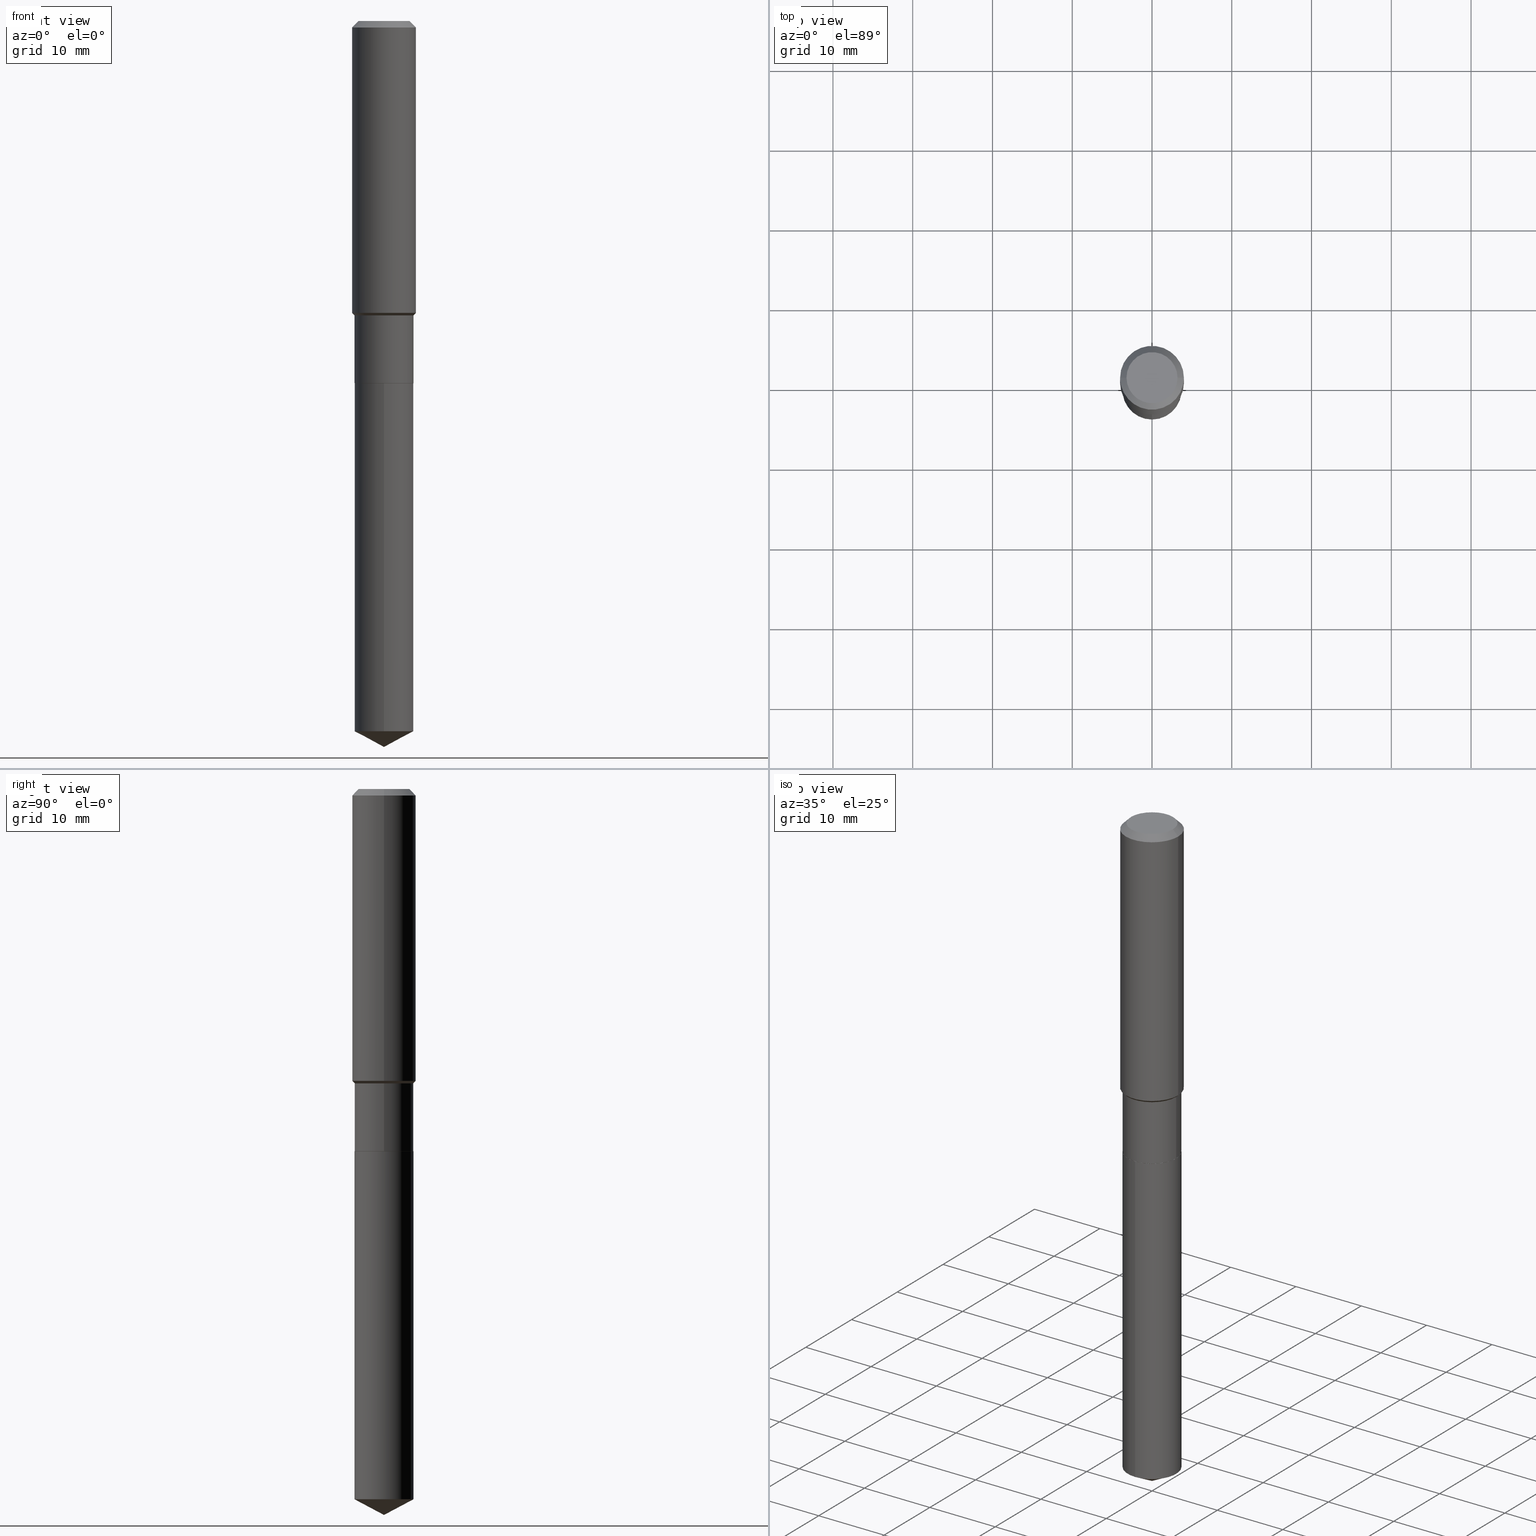
[diagram: canonical four-view strip — front | top / right | iso, engineering-drawing reading convention]
A machine part, canonical four-view strip (front | top / right | iso — engineering-drawing reading convention). The complete STEP part file that produces these views, byte-faithful:
ISO-10303-21;
HEADER;
FILE_DESCRIPTION (( 'STEP AP203' ),
    '1' );
FILE_NAME ('65204.STEP',
    '2024-04-24T21:20:47',
    ( '' ),
    ( '' ),
    'SwSTEP 2.0',
    'SolidWorks 2023',
    '' );
FILE_SCHEMA (( 'CONFIG_CONTROL_DESIGN' ));
ENDSEC;

DATA;
#1 = APPROVAL_DATE_TIME ( #201, #185 ) ;
#2 = CONICAL_SURFACE ( 'NONE', #409, 0.1456499999999999739, 0.7853981633974548293 ) ;
#3 = CIRCLE ( 'NONE', #219, 0.1456500000000000017 ) ;
#4 = APPROVAL_STATUS ( 'not_yet_approved' ) ;
#5 = DIRECTION ( 'NONE',  ( -2.445468806185136597E-29, 3.491481338843145583E-15, 1.000000000000000000 ) ) ;
#6 = DATE_TIME_ROLE ( 'classification_date' ) ;
#7 = LINE ( 'NONE', #132, #313 ) ;
#8 = CYLINDRICAL_SURFACE ( 'NONE', #389, 0.1456500000000000017 ) ;
#9 =( NAMED_UNIT ( * ) PLANE_ANGLE_UNIT ( ) SI_UNIT ( $, .RADIAN. ) );
#10 = ADVANCED_FACE ( 'NONE', ( #405 ), #277, .T. ) ;
#11 = DIRECTION ( 'NONE',  ( 1.000000000000000000, -6.982962677686267499E-15, 4.876176775795936353E-29 ) ) ;
#12 = CLOSED_SHELL ( 'NONE', ( #323, #141, #210, #303, #77 ) ) ;
#13 = AXIS2_PLACEMENT_3D ( 'NONE', #222, #145, #21 ) ;
#14 = APPROVAL_PERSON_ORGANIZATION ( #314, #232, #47 ) ;
#15 = PLANE ( 'NONE',  #171 ) ;
#16 = CARTESIAN_POINT ( 'NONE',  ( 3.551798894103292391E-29, -5.071027496535785515E-15, -1.452400000000000135 ) ) ;
#17 = DIRECTION ( 'NONE',  ( -2.445434866327650080E-29, 3.491529942650802761E-15, 1.000000000000000000 ) ) ;
#18 = ADVANCED_FACE ( 'NONE', ( #78 ), #2, .T. ) ;
#19 = CYLINDRICAL_SURFACE ( 'NONE', #36, 0.1456500000000000017 ) ;
#20 = ORIENTED_EDGE ( 'NONE', *, *, #398, .F. ) ;
#21 = DIRECTION ( 'NONE',  ( -6.982962677686266711E-15, -1.000000000000000000, 3.541896320645576252E-15 ) ) ;
#22 = DIRECTION ( 'NONE',  ( -0.7071067811864267805, 7.493145998869918709E-15, 0.7071067811866682540 ) ) ;
#23 = ORIENTED_EDGE ( 'NONE', *, *, #468, .F. ) ;
#24 = AXIS2_PLACEMENT_3D ( 'NONE', #60, #477, #322 ) ;
#25 = CC_DESIGN_APPROVAL ( #185, ( #196 ) ) ;
#26 = ORIENTED_EDGE ( 'NONE', *, *, #116, .F. ) ;
#27 = DIRECTION ( 'NONE',  ( -6.982962677686266711E-15, -1.000000000000000000, 3.541896320645576252E-15 ) ) ;
#28 = EDGE_CURVE ( 'NONE', #400, #117, #355, .T. ) ;
#29 = DIRECTION ( 'NONE',  ( 1.000000000000000000, -6.982962677686267499E-15, 4.876176775795936353E-29 ) ) ;
#30 = ORIENTED_EDGE ( 'NONE', *, *, #276, .F. ) ;
#31 = CARTESIAN_POINT ( 'NONE',  ( -0.1456499999999999739, -4.036122001901199188E-15, -1.452400000000000135 ) ) ;
#32 = EDGE_CURVE ( 'NONE', #117, #111, #153, .T. ) ;
#33 = EDGE_CURVE ( 'NONE', #158, #217, #228, .T. ) ;
#34 = EDGE_LOOP ( 'NONE', ( #264, #70, #257, #406 ) ) ;
#35 = AXIS2_PLACEMENT_3D ( 'NONE', #433, #254, #290 ) ;
#36 = AXIS2_PLACEMENT_3D ( 'NONE', #349, #175, #106 ) ;
#37 = DIRECTION ( 'NONE',  ( 1.000000000000000000, -6.982962677686265922E-15, 0.000000000000000000 ) ) ;
#38 = DIRECTION ( 'NONE',  ( -2.445468806185136597E-29, 3.491481338843145583E-15, 1.000000000000000000 ) ) ;
#39 = CARTESIAN_POINT ( 'NONE',  ( 8.571937176658098005E-29, -1.223862122627008641E-14, -3.505256521278505843 ) ) ;
#40 = DIRECTION ( 'NONE',  ( -2.445468806185136877E-29, 3.491481338843145188E-15, 1.000000000000000000 ) ) ;
#41 = VECTOR ( 'NONE', #90, 39.37007874015748143 ) ;
#42 = AXIS2_PLACEMENT_3D ( 'NONE', #460, #434, #285 ) ;
#43 = CARTESIAN_POINT ( 'NONE',  ( 4.371030944175314676E-29, -6.240673745048240238E-15, -1.787400000000000766 ) ) ;
#44 = FACE_OUTER_BOUND ( 'NONE', #403, .T. ) ;
#45 = ADVANCED_FACE ( 'NONE', ( #367 ), #82, .T. ) ;
#46 = CARTESIAN_POINT ( 'NONE',  ( 8.571937176658098005E-29, -1.223862122627008641E-14, -3.505256521278505843 ) ) ;
#47 = APPROVAL_ROLE ( '' ) ;
#48 = CIRCLE ( 'NONE', #347, 0.1260000000000000009 ) ;
#49 = PERSON_AND_ORGANIZATION ( #450, #320 ) ;
#50 = FACE_OUTER_BOUND ( 'NONE', #138, .T. ) ;
#51 = EDGE_CURVE ( 'NONE', #120, #353, #146, .T. ) ;
#52 = CARTESIAN_POINT ( 'NONE',  ( 4.371030944175314676E-29, -6.240673745048240238E-15, -1.787400000000000766 ) ) ;
#53 = CC_DESIGN_PERSON_AND_ORGANIZATION_ASSIGNMENT ( #49, #204, ( #159 ) ) ;
#54 = EDGE_LOOP ( 'NONE', ( #242, #225 ) ) ;
#55 = LINE ( 'NONE', #282, #268 ) ;
#56 = EDGE_LOOP ( 'NONE', ( #20, #439, #103, #365 ) ) ;
#57 = DIRECTION ( 'NONE',  ( -2.445468806185136597E-29, 3.491481338843145583E-15, 1.000000000000000000 ) ) ;
#58 = VECTOR ( 'NONE', #490, 39.37007874015748143 ) ;
#59 =( NAMED_UNIT ( * ) SI_UNIT ( $, .STERADIAN. ) SOLID_ANGLE_UNIT ( ) );
#60 = CARTESIAN_POINT ( 'NONE',  ( 4.369808209772221874E-29, -6.238928004378817945E-15, -1.786900000000000599 ) ) ;
#61 = ADVANCED_FACE ( 'NONE', ( #259 ), #401, .F. ) ;
#62 = DESIGN_CONTEXT ( 'detailed design', #266, 'design' ) ;
#63 = ORIENTED_EDGE ( 'NONE', *, *, #424, .T. ) ;
#64 = FACE_OUTER_BOUND ( 'NONE', #79, .T. ) ;
#65 = CARTESIAN_POINT ( 'NONE',  ( 4.371030944175314676E-29, -6.240673745048240238E-15, -1.787400000000000766 ) ) ;
#66 = CARTESIAN_POINT ( 'NONE',  ( -9.439721640706201686E-47, 1.347742071746726764E-32, 3.860086710912459732E-18 ) ) ;
#67 = DIRECTION ( 'NONE',  ( -2.445434866327650080E-29, 3.491529942650802761E-15, 1.000000000000000000 ) ) ;
#68 = ORIENTED_EDGE ( 'NONE', *, *, #246, .F. ) ;
#69 = AXIS2_PLACEMENT_3D ( 'NONE', #447, #80, #74 ) ;
#70 = ORIENTED_EDGE ( 'NONE', *, *, #327, .T. ) ;
#71 = AXIS2_PLACEMENT_3D ( 'NONE', #16, #479, #256 ) ;
#72 = AXIS2_PLACEMENT_3D ( 'NONE', #375, #378, #341 ) ;
#73 = CC_DESIGN_APPROVAL ( #232, ( #159 ) ) ;
#74 = DIRECTION ( 'NONE',  ( -1.000000000000000000, 6.982962677686265922E-15, 0.000000000000000000 ) ) ;
#75 = ORIENTED_EDGE ( 'NONE', *, *, #449, .T. ) ;
#76 = ADVANCED_FACE ( 'NONE', ( #362 ), #143, .T. ) ;
#77 = ADVANCED_FACE ( 'NONE', ( #437 ), #485, .F. ) ;
#78 = FACE_OUTER_BOUND ( 'NONE', #291, .T. ) ;
#79 = EDGE_LOOP ( 'NONE', ( #191, #220, #363, #395 ) ) ;
#80 = DIRECTION ( 'NONE',  ( 2.445468806185136597E-29, -3.491481338843145583E-15, -1.000000000000000000 ) ) ;
#81 = DIRECTION ( 'NONE',  ( -2.445468806185136597E-29, 3.491481338843145583E-15, 1.000000000000000000 ) ) ;
#82 = CONICAL_SURFACE ( 'NONE', #420, 0.1451500000000000012, 0.7853981633972775267 ) ;
#83 = CC_DESIGN_APPROVAL ( #456, ( #96 ) ) ;
#84 = CARTESIAN_POINT ( 'NONE',  ( 3.522820088749998377E-29, -5.029653442670493908E-15, -1.440549999999999997 ) ) ;
#85 = EDGE_CURVE ( 'NONE', #381, #120, #126, .T. ) ;
#86 = AXIS2_PLACEMENT_3D ( 'NONE', #238, #130, #470 ) ;
#87 = EDGE_CURVE ( 'NONE', #359, #157, #297, .T. ) ;
#88 = EDGE_LOOP ( 'NONE', ( #186, #148, #255, #325 ) ) ;
#89 = DIRECTION ( 'NONE',  ( 6.273719981627759766E-15, 0.8829475928589287648, 0.4694715627858873086 ) ) ;
#90 = DIRECTION ( 'NONE',  ( -2.445468806185136877E-29, 3.491481338843145188E-15, 1.000000000000000000 ) ) ;
#91 = ORIENTED_EDGE ( 'NONE', *, *, #301, .F. ) ;
#92 = CARTESIAN_POINT ( 'NONE',  ( 0.000000000000000000, 0.000000000000000000, 0.000000000000000000 ) ) ;
#93 = AXIS2_PLACEMENT_3D ( 'NONE', #287, #214, #27 ) ;
#94 = LOCAL_TIME ( 17, 20, 47.00000000000000000, #209 ) ;
#95 = EDGE_CURVE ( 'NONE', #381, #117, #170, .T. ) ;
#96 = SECURITY_CLASSIFICATION ( '', '', #342 ) ;
#97 = COORDINATED_UNIVERSAL_TIME_OFFSET ( 5, 0, .BEHIND. ) ;
#98 = VERTEX_POINT ( 'NONE', #149 ) ;
#99 = CARTESIAN_POINT ( 'NONE',  ( 1.034905494634629320E-15, 0.1456499999999937289, -1.787400000000000988 ) ) ;
#100 = FACE_OUTER_BOUND ( 'NONE', #88, .T. ) ;
#101 = MANIFOLD_SOLID_BREP ( 'Body-Move/Copy2[1]', #12 ) ;
#102 = APPROVAL_ROLE ( '' ) ;
#103 = ORIENTED_EDGE ( 'NONE', *, *, #33, .T. ) ;
#104 = CARTESIAN_POINT ( 'NONE',  ( 3.522820088749998377E-29, -5.029653442670493908E-15, -1.440549999999999997 ) ) ;
#105 = AXIS2_PLACEMENT_3D ( 'NONE', #316, #57, #212 ) ;
#106 = DIRECTION ( 'NONE',  ( 1.000000000000000000, -6.982962677686265922E-15, 4.876176775795935232E-29 ) ) ;
#107 = ORIENTED_EDGE ( 'NONE', *, *, #28, .T. ) ;
#108 = LINE ( 'NONE', #393, #336 ) ;
#109 = DIRECTION ( 'NONE',  ( -2.445468806185136597E-29, 3.491481338843145583E-15, 1.000000000000000000 ) ) ;
#110 = DIRECTION ( 'NONE',  ( 1.000000000000000000, -6.982962677686265922E-15, 4.876176775795935793E-29 ) ) ;
#111 = VERTEX_POINT ( 'NONE', #192 ) ;
#112 = DIRECTION ( 'NONE',  ( -2.445434866327650080E-29, 3.491529942650802761E-15, 1.000000000000000000 ) ) ;
#113 = VERTEX_POINT ( 'NONE', #330 ) ;
#114 = ORIENTED_EDGE ( 'NONE', *, *, #95, .T. ) ;
#115 = DIRECTION ( 'NONE',  ( 0.7071067811865521247, -2.468850131082305181E-15, 0.7071067811865429098 ) ) ;
#116 = EDGE_CURVE ( 'NONE', #113, #217, #488, .T. ) ;
#117 = VERTEX_POINT ( 'NONE', #218 ) ;
#118 = CARTESIAN_POINT ( 'NONE',  ( -0.1575000000000000011, -1.450712743599868094E-15, -0.03150000000000019451 ) ) ;
#119 = CIRCLE ( 'NONE', #465, 0.1456500000000000017 ) ;
#120 = VERTEX_POINT ( 'NONE', #292 ) ;
#121 = ORIENTED_EDGE ( 'NONE', *, *, #343, .T. ) ;
#122 = FACE_OUTER_BOUND ( 'NONE', #193, .T. ) ;
#123 = PRODUCT_DEFINITION_SHAPE ( 'NONE', 'NONE',  #196 ) ;
#124 = CIRCLE ( 'NONE', #444, 0.1575000000000000011 ) ;
#125 = CARTESIAN_POINT ( 'NONE',  ( 0.1456500000000000017, -1.017068514005004661E-15, 7.102151473946780073E-30 ) ) ;
#126 = LINE ( 'NONE', #125, #41 ) ;
#127 = ADVANCED_FACE ( 'NONE', ( #64 ), #154, .T. ) ;
#128 = AXIS2_PLACEMENT_3D ( 'NONE', #354, #152, #326 ) ;
#129 = LOCAL_TIME ( 17, 20, 47.00000000000000000, #97 ) ;
#130 = DIRECTION ( 'NONE',  ( 0.000000000000000000, 0.000000000000000000, 1.000000000000000000 ) ) ;
#131 = DATE_AND_TIME ( #459, #221 ) ;
#132 = CARTESIAN_POINT ( 'NONE',  ( 0.1575000000000000011, -1.190510096822576026E-15, -0.03150000000000019451 ) ) ;
#133 = PERSON_AND_ORGANIZATION ( #450, #320 ) ;
#134 = ORIENTED_EDGE ( 'NONE', *, *, #373, .T. ) ;
#135 = DIRECTION ( 'NONE',  ( -2.445434866327650080E-29, 3.491529942650802761E-15, 1.000000000000000000 ) ) ;
#136 = VECTOR ( 'NONE', #40, 39.37007874015748143 ) ;
#137 = DIRECTION ( 'NONE',  ( -2.445468806185136597E-29, 3.491481338843145583E-15, 1.000000000000000000 ) ) ;
#138 = EDGE_LOOP ( 'NONE', ( #151, #63, #26, #173 ) ) ;
#139 = DIRECTION ( 'NONE',  ( -2.438088387897960049E-29, 3.491481338843145188E-15, 1.000000000000000000 ) ) ;
#140 = PERSON_AND_ORGANIZATION ( #450, #320 ) ;
#141 = ADVANCED_FACE ( 'NONE', ( #440 ), #335, .T. ) ;
#142 = DIRECTION ( 'NONE',  ( 1.000000000000000000, -6.982962677686265922E-15, 0.000000000000000000 ) ) ;
#143 = CYLINDRICAL_SURFACE ( 'NONE', #312, 0.1456500000000000017 ) ;
#144 = ORIENTED_EDGE ( 'NONE', *, *, #85, .F. ) ;
#145 = DIRECTION ( 'NONE',  ( -2.445434866327650080E-29, 3.491529942650802761E-15, 1.000000000000000000 ) ) ;
#146 = LINE ( 'NONE', #318, #267 ) ;
#147 = CALENDAR_DATE ( 2024, 24, 4 ) ;
#148 = ORIENTED_EDGE ( 'NONE', *, *, #295, .T. ) ;
#149 = CARTESIAN_POINT ( 'NONE',  ( 0.1260000000000000009, -1.027466422270894443E-15, 3.860086710919128072E-18 ) ) ;
#150 = CC_DESIGN_PERSON_AND_ORGANIZATION_ASSIGNMENT ( #164, #421, ( #159 ) ) ;
#151 = ORIENTED_EDGE ( 'NONE', *, *, #453, .T. ) ;
#152 = DIRECTION ( 'NONE',  ( 2.445468806185136597E-29, -3.491481338843145583E-15, -1.000000000000000000 ) ) ;
#153 = LINE ( 'NONE', #265, #483 ) ;
#154 = CONICAL_SURFACE ( 'NONE', #71, 0.1456499999999999739, 0.7853981633974548293 ) ;
#155 = EDGE_LOOP ( 'NONE', ( #121, #107, #442, #227 ) ) ;
#156 = CC_DESIGN_SECURITY_CLASSIFICATION ( #96, ( #159 ) ) ;
#157 = VERTEX_POINT ( 'NONE', #289 ) ;
#158 = VERTEX_POINT ( 'NONE', #253 ) ;
#159 = PRODUCT_DEFINITION_FORMATION_WITH_SPECIFIED_SOURCE ( 'ANY', '', #370, .NOT_KNOWN. ) ;
#160 = AXIS2_PLACEMENT_3D ( 'NONE', #46, #339, #275 ) ;
#161 = LOCAL_TIME ( 17, 20, 47.00000000000000000, #183 ) ;
#162 = ADVANCED_BREP_SHAPE_REPRESENTATION ( '65204', ( #101, #262, #86 ), #235 ) ;
#163 = CYLINDRICAL_SURFACE ( 'NONE', #72, 0.1456500000000000017 ) ;
#164 = PERSON_AND_ORGANIZATION ( #450, #320 ) ;
#165 = ORIENTED_EDGE ( 'NONE', *, *, #338, .T. ) ;
#166 = DIRECTION ( 'NONE',  ( -2.445468806185136597E-29, 3.491481338843145583E-15, 1.000000000000000000 ) ) ;
#167 = CARTESIAN_POINT ( 'NONE',  ( 8.761381887699733540E-29, -1.250893057664341756E-14, -3.582699999999999996 ) ) ;
#168 = APPLICATION_CONTEXT ( 'configuration controlled 3d designs of mechanical parts and assemblies' ) ;
#169 = ORIENTED_EDGE ( 'NONE', *, *, #28, .F. ) ;
#170 = CIRCLE ( 'NONE', #24, 0.1456500000000000017 ) ;
#171 = AXIS2_PLACEMENT_3D ( 'NONE', #467, #139, #110 ) ;
#172 = CALENDAR_DATE ( 2024, 24, 4 ) ;
#173 = ORIENTED_EDGE ( 'NONE', *, *, #274, .F. ) ;
#174 = CARTESIAN_POINT ( 'NONE',  ( -0.1451500000000000012, -5.206671736918343608E-15, -1.787400000000000766 ) ) ;
#175 = DIRECTION ( 'NONE',  ( -2.445468806185136597E-29, 3.491481338843145583E-15, 1.000000000000000000 ) ) ;
#176 = APPROVAL_DATE_TIME ( #263, #456 ) ;
#177 = ORIENTED_EDGE ( 'NONE', *, *, #32, .T. ) ;
#178 = VERTEX_POINT ( 'NONE', #436 ) ;
#179 = DIRECTION ( 'NONE',  ( -2.445468806185136597E-29, 3.491481338843145583E-15, 1.000000000000000000 ) ) ;
#180 = DIRECTION ( 'NONE',  ( -2.445468806185136877E-29, 3.491481338843145188E-15, 1.000000000000000000 ) ) ;
#181 = ORIENTED_EDGE ( 'NONE', *, *, #281, .T. ) ;
#182 = CONICAL_SURFACE ( 'NONE', #128, 0.1575000000000000011, 0.7853981633974449483 ) ;
#183 = COORDINATED_UNIVERSAL_TIME_OFFSET ( 5, 0, .BEHIND. ) ;
#184 = VERTEX_POINT ( 'NONE', #360 ) ;
#185 = APPROVAL ( #311, 'UNSPECIFIED' ) ;
#186 = ORIENTED_EDGE ( 'NONE', *, *, #424, .F. ) ;
#187 = FACE_OUTER_BOUND ( 'NONE', #344, .T. ) ;
#188 = PRODUCT_RELATED_PRODUCT_CATEGORY ( 'detail', '', ( #370 ) ) ;
#189 = CARTESIAN_POINT ( 'NONE',  ( -0.1451500000000000012, -5.209320964092455598E-15, -1.787400000000000766 ) ) ;
#190 = CARTESIAN_POINT ( 'NONE',  ( 0.1575000000000001676, -6.129470064406082177E-15, -1.440549999999999997 ) ) ;
#191 = ORIENTED_EDGE ( 'NONE', *, *, #231, .F. ) ;
#192 = CARTESIAN_POINT ( 'NONE',  ( -0.1456499999999999739, -4.620072255822716192E-15, -1.452400000000000135 ) ) ;
#193 = EDGE_LOOP ( 'NONE', ( #429, #284, #215 ) ) ;
#194 = CIRCLE ( 'NONE', #198, 0.1456499999999999739 ) ;
#195 = DIMENSIONAL_EXPONENTS ( 1.000000000000000000, 0.000000000000000000, 0.000000000000000000, 0.000000000000000000, 0.000000000000000000, 0.000000000000000000, 0.000000000000000000 ) ;
#196 = PRODUCT_DEFINITION ( 'UNKNOWN', '', #159, #62 ) ;
#197 = EDGE_CURVE ( 'NONE', #481, #293, #294, .T. ) ;
#198 = AXIS2_PLACEMENT_3D ( 'NONE', #203, #5, #383 ) ;
#199 = CC_DESIGN_DATE_AND_TIME_ASSIGNMENT ( #384, #6, ( #96 ) ) ;
#200 = ORIENTED_EDGE ( 'NONE', *, *, #231, .T. ) ;
#201 = DATE_AND_TIME ( #461, #241 ) ;
#202 = VECTOR ( 'NONE', #441, 39.37007874015748143 ) ;
#203 = CARTESIAN_POINT ( 'NONE',  ( 3.551798894103292391E-29, -5.071027496535785515E-15, -1.452400000000000135 ) ) ;
#204 = PERSON_AND_ORGANIZATION_ROLE ( 'design_supplier' ) ;
#205 = ORIENTED_EDGE ( 'NONE', *, *, #276, .T. ) ;
#206 = DIRECTION ( 'NONE',  ( -2.445468806185136877E-29, 3.491481338843145188E-15, 1.000000000000000000 ) ) ;
#207 = APPROVAL_STATUS ( 'not_yet_approved' ) ;
#208 = ORIENTED_EDGE ( 'NONE', *, *, #116, .T. ) ;
#209 = COORDINATED_UNIVERSAL_TIME_OFFSET ( 5, 0, .BEHIND. ) ;
#210 = ADVANCED_FACE ( 'NONE', ( #122 ), #272, .T. ) ;
#211 = ADVANCED_FACE ( 'NONE', ( #187 ), #182, .T. ) ;
#212 = DIRECTION ( 'NONE',  ( 1.000000000000000000, -6.982962677686265922E-15, 0.000000000000000000 ) ) ;
#213 = CONICAL_SURFACE ( 'NONE', #105, 0.1451500000000000012, 0.7853981633972775267 ) ;
#214 = DIRECTION ( 'NONE',  ( -2.445434866327650080E-29, 3.491529942650802761E-15, 1.000000000000000000 ) ) ;
#215 = ORIENTED_EDGE ( 'NONE', *, *, #327, .F. ) ;
#216 = CARTESIAN_POINT ( 'NONE',  ( 0.000000000000000000, 0.000000000000000000, 0.000000000000000000 ) ) ;
#217 = VERTEX_POINT ( 'NONE', #118 ) ;
#218 = CARTESIAN_POINT ( 'NONE',  ( -0.1456500000000000294, -4.620072255822716192E-15, -1.786900000000000599 ) ) ;
#219 = AXIS2_PLACEMENT_3D ( 'NONE', #39, #334, #372 ) ;
#220 = ORIENTED_EDGE ( 'NONE', *, *, #390, .T. ) ;
#221 = LOCAL_TIME ( 17, 20, 47.00000000000000000, #306 ) ;
#222 = CARTESIAN_POINT ( 'NONE',  ( -8.751564308155273039E-28, 1.249527913146904196E-13, 35.78737874015747877 ) ) ;
#223 = DIRECTION ( 'NONE',  ( -1.000000000000000000, 6.982962677686265922E-15, -4.876176775795935793E-29 ) ) ;
#224 = UNCERTAINTY_MEASURE_WITH_UNIT (LENGTH_MEASURE( 1.000000000000000082E-05 ), #304, 'distance_accuracy_value', 'NONE');
#225 = ORIENTED_EDGE ( 'NONE', *, *, #197, .T. ) ;
#226 = DIRECTION ( 'NONE',  ( -2.445468806185136597E-29, 3.491481338843145583E-15, 1.000000000000000000 ) ) ;
#227 = ORIENTED_EDGE ( 'NONE', *, *, #279, .F. ) ;
#228 = LINE ( 'NONE', #364, #202 ) ;
#229 =( LENGTH_UNIT ( ) NAMED_UNIT ( * ) SI_UNIT ( $, .METRE. ) );
#230 = AXIS2_PLACEMENT_3D ( 'NONE', #391, #17, #443 ) ;
#231 = EDGE_CURVE ( 'NONE', #111, #178, #350, .T. ) ;
#232 = APPROVAL ( #4, 'UNSPECIFIED' ) ;
#233 = AXIS2_PLACEMENT_3D ( 'NONE', #446, #179, #142 ) ;
#234 = CARTESIAN_POINT ( 'NONE',  ( 0.1451500000000000012, -7.254250777714402286E-15, -1.787400000000000766 ) ) ;
#235 =( GEOMETRIC_REPRESENTATION_CONTEXT ( 3 ) GLOBAL_UNCERTAINTY_ASSIGNED_CONTEXT ( ( #224 ) ) GLOBAL_UNIT_ASSIGNED_CONTEXT ( ( #304, #9, #59 ) ) REPRESENTATION_CONTEXT ( 'NONE', 'WORKASPACE' ) );
#236 = AXIS2_PLACEMENT_3D ( 'NONE', #43, #81, #407 ) ;
#237 = DIRECTION ( 'NONE',  ( -6.982962677686265922E-15, -1.000000000000000000, 3.751250248766581581E-15 ) ) ;
#238 = CARTESIAN_POINT ( 'NONE',  ( 0.000000000000000000, 0.000000000000000000, 0.000000000000000000 ) ) ;
#239 = APPLICATION_PROTOCOL_DEFINITION ( 'international standard', 'config_control_design', 1994, #266 ) ;
#240 = AXIS2_PLACEMENT_3D ( 'NONE', #394, #328, #223 ) ;
#241 = LOCAL_TIME ( 17, 20, 47.00000000000000000, #464 ) ;
#242 = ORIENTED_EDGE ( 'NONE', *, *, #468, .T. ) ;
#243 = DIRECTION ( 'NONE',  ( -2.445434866327650080E-29, 3.491529942650802761E-15, 1.000000000000000000 ) ) ;
#244 = PERSON_AND_ORGANIZATION ( #450, #320 ) ;
#245 = DIRECTION ( 'NONE',  ( 1.000000000000000000, -6.982962677686267499E-15, 0.000000000000000000 ) ) ;
#246 = EDGE_CURVE ( 'NONE', #157, #293, #108, .T. ) ;
#247 = CYLINDRICAL_SURFACE ( 'NONE', #260, 0.1575000000000000844 ) ;
#248 = DIRECTION ( 'NONE',  ( -2.445468806185136597E-29, 3.491481338843145583E-15, 1.000000000000000000 ) ) ;
#249 = FACE_OUTER_BOUND ( 'NONE', #321, .T. ) ;
#250 = VECTOR ( 'NONE', #22, 39.37007874015748143 ) ;
#251 = DIRECTION ( 'NONE',  ( -2.445468806185136597E-29, 3.491481338843145583E-15, 1.000000000000000000 ) ) ;
#252 = ORIENTED_EDGE ( 'NONE', *, *, #453, .F. ) ;
#253 = CARTESIAN_POINT ( 'NONE',  ( -0.1260000000000000009, 9.348441284752484904E-16, 3.860086710906114178E-18 ) ) ;
#254 = DIRECTION ( 'NONE',  ( 2.445434866327649800E-29, -3.491529942650802761E-15, -1.000000000000000000 ) ) ;
#255 = ORIENTED_EDGE ( 'NONE', *, *, #274, .T. ) ;
#256 = DIRECTION ( 'NONE',  ( 1.000000000000000000, -6.982962677686264344E-15, 0.000000000000000000 ) ) ;
#257 = ORIENTED_EDGE ( 'NONE', *, *, #246, .T. ) ;
#258 = CARTESIAN_POINT ( 'NONE',  ( 8.761259495592071827E-29, -1.250910432553503198E-14, -3.582699999999999996 ) ) ;
#259 = FACE_OUTER_BOUND ( 'NONE', #445, .T. ) ;
#260 = AXIS2_PLACEMENT_3D ( 'NONE', #216, #324, #29 ) ;
#261 = EDGE_LOOP ( 'NONE', ( #480, #30 ) ) ;
#262 = MANIFOLD_SOLID_BREP ( 'Body-Move/Copy2[2]', #474 ) ;
#263 = DATE_AND_TIME ( #147, #161 ) ;
#264 = ORIENTED_EDGE ( 'NONE', *, *, #449, .F. ) ;
#265 = CARTESIAN_POINT ( 'NONE',  ( -0.1456500000000000017, 1.034905494634585933E-15, -7.164428958956269648E-30 ) ) ;
#266 = APPLICATION_CONTEXT ( 'configuration controlled 3d designs of mechanical parts and assemblies' ) ;
#267 = VECTOR ( 'NONE', #115, 39.37007874015748143 ) ;
#268 = VECTOR ( 'NONE', #206, 39.37007874015748143 ) ;
#269 = LINE ( 'NONE', #234, #58 ) ;
#270 = CC_DESIGN_PERSON_AND_ORGANIZATION_ASSIGNMENT ( #133, #427, ( #370 ) ) ;
#271 = DIRECTION ( 'NONE',  ( -2.445468806185136597E-29, 3.491481338843145583E-15, 1.000000000000000000 ) ) ;
#272 = CONICAL_SURFACE ( 'NONE', #93, 74.04434902938321272, 1.082104136236484715 ) ;
#273 = AXIS2_PLACEMENT_3D ( 'NONE', #84, #271, #455 ) ;
#274 = EDGE_CURVE ( 'NONE', #353, #113, #396, .T. ) ;
#275 = DIRECTION ( 'NONE',  ( -6.982962677686265922E-15, -1.000000000000000000, 3.751250248766581581E-15 ) ) ;
#276 = EDGE_CURVE ( 'NONE', #400, #184, #422, .T. ) ;
#277 = CONICAL_SURFACE ( 'NONE', #69, 0.1575000000000000011, 0.7853981633974449483 ) ;
#278 = CIRCLE ( 'NONE', #273, 0.1575000000000001676 ) ;
#279 = EDGE_CURVE ( 'NONE', #184, #381, #269, .T. ) ;
#280 = APPROVAL_PERSON_ORGANIZATION ( #244, #456, #345 ) ;
#281 = EDGE_CURVE ( 'NONE', #98, #158, #484, .T. ) ;
#282 = CARTESIAN_POINT ( 'NONE',  ( -0.1575000000000000844, 1.119104808822158392E-15, -7.747322767151481189E-30 ) ) ;
#283 = CALENDAR_DATE ( 2024, 24, 4 ) ;
#284 = ORIENTED_EDGE ( 'NONE', *, *, #87, .T. ) ;
#285 = DIRECTION ( 'NONE',  ( 1.000000000000000000, -6.982962677686264344E-15, 0.000000000000000000 ) ) ;
#286 = CARTESIAN_POINT ( 'NONE',  ( 0.1456500000000000017, -7.255996518383823001E-15, -1.786900000000000599 ) ) ;
#287 = CARTESIAN_POINT ( 'NONE',  ( -8.751564308155273039E-28, 1.249527913146904196E-13, 35.78737874015747877 ) ) ;
#288 = CIRCLE ( 'NONE', #42, 0.1456499999999999739 ) ;
#289 = CARTESIAN_POINT ( 'NONE',  ( -1.017068514004918675E-15, -0.1456500000000122419, -3.505256521278504955 ) ) ;
#290 = DIRECTION ( 'NONE',  ( 6.982962677686265922E-15, 1.000000000000000000, -3.491529942650802761E-15 ) ) ;
#291 = EDGE_LOOP ( 'NONE', ( #165, #200, #252, #315 ) ) ;
#292 = CARTESIAN_POINT ( 'NONE',  ( 0.1456499999999999739, -6.088096010540789782E-15, -1.452400000000000135 ) ) ;
#293 = VERTEX_POINT ( 'NONE', #333 ) ;
#294 = CIRCLE ( 'NONE', #412, 0.1456500000000000017 ) ;
#295 = EDGE_CURVE ( 'NONE', #178, #353, #278, .T. ) ;
#296 = EDGE_LOOP ( 'NONE', ( #114, #177, #309, #144 ) ) ;
#297 = LINE ( 'NONE', #258, #377 ) ;
#298 = CARTESIAN_POINT ( 'NONE',  ( 0.000000000000000000, 0.000000000000000000, 0.000000000000000000 ) ) ;
#299 = CIRCLE ( 'NONE', #305, 0.1575000000000001676 ) ;
#300 = DIRECTION ( 'NONE',  ( 1.000000000000000000, -6.982962677686265922E-15, 4.876281427513067258E-29 ) ) ;
#301 = EDGE_CURVE ( 'NONE', #157, #462, #3, .T. ) ;
#302 = ORIENTED_EDGE ( 'NONE', *, *, #390, .F. ) ;
#303 = ADVANCED_FACE ( 'NONE', ( #374 ), #8, .T. ) ;
#304 =( CONVERSION_BASED_UNIT ( 'INCH', #452 ) LENGTH_UNIT ( ) NAMED_UNIT ( #195 ) );
#305 = AXIS2_PLACEMENT_3D ( 'NONE', #104, #251, #245 ) ;
#306 = COORDINATED_UNIVERSAL_TIME_OFFSET ( 5, 0, .BEHIND. ) ;
#307 = PERSON_AND_ORGANIZATION_ROLE ( 'classification_officer' ) ;
#308 = CC_DESIGN_DATE_AND_TIME_ASSIGNMENT ( #346, #340, ( #196 ) ) ;
#309 = ORIENTED_EDGE ( 'NONE', *, *, #338, .F. ) ;
#310 = DIRECTION ( 'NONE',  ( -2.445468806185136597E-29, 3.491481338843145583E-15, 1.000000000000000000 ) ) ;
#311 = APPROVAL_STATUS ( 'not_yet_approved' ) ;
#312 = AXIS2_PLACEMENT_3D ( 'NONE', #298, #331, #473 ) ;
#313 = VECTOR ( 'NONE', #419, 39.37007874015748143 ) ;
#314 = PERSON_AND_ORGANIZATION ( #450, #320 ) ;
#315 = ORIENTED_EDGE ( 'NONE', *, *, #51, .F. ) ;
#316 = CARTESIAN_POINT ( 'NONE',  ( 4.371030944175314676E-29, -6.240673745048240238E-15, -1.787400000000000766 ) ) ;
#317 = DIRECTION ( 'NONE',  ( 1.000000000000000000, -6.982962677686265922E-15, 4.876281427513067258E-29 ) ) ;
#318 = CARTESIAN_POINT ( 'NONE',  ( 0.1456499999999999739, -6.088096010540789782E-15, -1.452400000000000135 ) ) ;
#319 = ORIENTED_EDGE ( 'NONE', *, *, #32, .F. ) ;
#320 = ORGANIZATION ( 'UNSPECIFIED', 'UNSPECIFIED', '' ) ;
#321 = EDGE_LOOP ( 'NONE', ( #319, #466, #430, #302 ) ) ;
#322 = DIRECTION ( 'NONE',  ( 1.000000000000000000, -6.982962677686269866E-15, 0.000000000000000000 ) ) ;
#323 = ADVANCED_FACE ( 'NONE', ( #44 ), #163, .T. ) ;
#324 = DIRECTION ( 'NONE',  ( -2.445468806185136597E-29, 3.491481338843145583E-15, 1.000000000000000000 ) ) ;
#325 = ORIENTED_EDGE ( 'NONE', *, *, #438, .F. ) ;
#326 = DIRECTION ( 'NONE',  ( -1.000000000000000000, 6.982962677686265922E-15, 0.000000000000000000 ) ) ;
#327 = EDGE_CURVE ( 'NONE', #462, #157, #332, .T. ) ;
#328 = DIRECTION ( 'NONE',  ( 2.438088387897960049E-29, -3.491481338843145188E-15, -1.000000000000000000 ) ) ;
#329 = ORIENTED_EDGE ( 'NONE', *, *, #279, .T. ) ;
#330 = CARTESIAN_POINT ( 'NONE',  ( 0.1575000000000000011, -1.209798283909146741E-15, -0.03150000000000019451 ) ) ;
#331 = DIRECTION ( 'NONE',  ( -2.445468806185136597E-29, 3.491481338843145583E-15, 1.000000000000000000 ) ) ;
#332 = CIRCLE ( 'NONE', #160, 0.1456500000000000017 ) ;
#333 = CARTESIAN_POINT ( 'NONE',  ( -1.017068514004961077E-15, -0.1456500000000062467, -1.787399999999999878 ) ) ;
#334 = DIRECTION ( 'NONE',  ( -2.445434866327650080E-29, 3.491529942650802761E-15, 1.000000000000000000 ) ) ;
#335 = CONICAL_SURFACE ( 'NONE', #13, 74.04434902938321272, 1.082104136236484715 ) ;
#336 = VECTOR ( 'NONE', #112, 39.37007874015748143 ) ;
#337 = EDGE_CURVE ( 'NONE', #359, #462, #416, .T. ) ;
#338 = EDGE_CURVE ( 'NONE', #120, #111, #194, .T. ) ;
#339 = DIRECTION ( 'NONE',  ( -2.445434866327650080E-29, 3.491529942650802761E-15, 1.000000000000000000 ) ) ;
#340 = DATE_TIME_ROLE ( 'creation_date' ) ;
#341 = DIRECTION ( 'NONE',  ( -6.982962677686265922E-15, -1.000000000000000000, 3.751250248766581581E-15 ) ) ;
#342 = SECURITY_CLASSIFICATION_LEVEL ( 'unclassified' ) ;
#343 = EDGE_CURVE ( 'NONE', #184, #400, #432, .T. ) ;
#344 = EDGE_LOOP ( 'NONE', ( #418, #385, #208, #478 ) ) ;
#345 = APPROVAL_ROLE ( '' ) ;
#346 = DATE_AND_TIME ( #172, #94 ) ;
#347 = AXIS2_PLACEMENT_3D ( 'NONE', #66, #356, #317 ) ;
#348 = CARTESIAN_POINT ( 'NONE',  ( 4.369808209772221874E-29, -6.238928004378817945E-15, -1.786900000000000599 ) ) ;
#349 = CARTESIAN_POINT ( 'NONE',  ( 0.000000000000000000, 0.000000000000000000, 0.000000000000000000 ) ) ;
#350 = LINE ( 'NONE', #31, #410 ) ;
#351 = CYLINDRICAL_SURFACE ( 'NONE', #371, 0.1575000000000000844 ) ;
#352 = ADVANCED_FACE ( 'NONE', ( #100 ), #247, .T. ) ;
#353 = VERTEX_POINT ( 'NONE', #190 ) ;
#354 = CARTESIAN_POINT ( 'NONE',  ( 7.703226739483228723E-31, -1.099816621735597661E-16, -0.03150000000000019451 ) ) ;
#355 = LINE ( 'NONE', #189, #250 ) ;
#356 = DIRECTION ( 'NONE',  ( -2.445468806185136597E-29, 3.491481338843145583E-15, 1.000000000000000000 ) ) ;
#357 = ORIENTED_EDGE ( 'NONE', *, *, #87, .F. ) ;
#358 = CARTESIAN_POINT ( 'NONE',  ( 3.551798894103292391E-29, -5.071027496535785515E-15, -1.452400000000000135 ) ) ;
#359 = VERTEX_POINT ( 'NONE', #469 ) ;
#360 = CARTESIAN_POINT ( 'NONE',  ( 0.1451500000000000012, -7.254250777714402286E-15, -1.787400000000000766 ) ) ;
#361 = CC_DESIGN_PERSON_AND_ORGANIZATION_ASSIGNMENT ( #140, #307, ( #96 ) ) ;
#362 = FACE_OUTER_BOUND ( 'NONE', #296, .T. ) ;
#363 = ORIENTED_EDGE ( 'NONE', *, *, #51, .T. ) ;
#364 = CARTESIAN_POINT ( 'NONE',  ( -0.1575000000000000011, 9.898349595620272334E-16, -0.03150000000000019451 ) ) ;
#365 = ORIENTED_EDGE ( 'NONE', *, *, #438, .T. ) ;
#366 = CARTESIAN_POINT ( 'NONE',  ( -9.439721640706201686E-47, 1.347742071746726764E-32, 3.860086710912459732E-18 ) ) ;
#367 = FACE_OUTER_BOUND ( 'NONE', #155, .T. ) ;
#368 = ADVANCED_FACE ( 'NONE', ( #249 ), #19, .T. ) ;
#369 = CIRCLE ( 'NONE', #230, 0.1456500000000000017 ) ;
#370 = PRODUCT ( '65204', '65204', '', ( #376 ) ) ;
#371 = AXIS2_PLACEMENT_3D ( 'NONE', #92, #310, #11 ) ;
#372 = DIRECTION ( 'NONE',  ( -6.982962677686265922E-15, -1.000000000000000000, 3.751250248766581581E-15 ) ) ;
#373 = EDGE_CURVE ( 'NONE', #158, #98, #48, .T. ) ;
#374 = FACE_OUTER_BOUND ( 'NONE', #34, .T. ) ;
#375 = CARTESIAN_POINT ( 'NONE',  ( 4.371030944175314676E-29, -6.240673745048239449E-15, -1.787400000000000544 ) ) ;
#376 = MECHANICAL_CONTEXT ( 'NONE', #168, 'mechanical' ) ;
#377 = VECTOR ( 'NONE', #475, 39.37007874015748854 ) ;
#378 = DIRECTION ( 'NONE',  ( -2.445434866327650080E-29, 3.491529942650802761E-15, 1.000000000000000000 ) ) ;
#379 = APPROVAL_DATE_TIME ( #131, #232 ) ;
#380 = AXIS2_PLACEMENT_3D ( 'NONE', #52, #137, #425 ) ;
#381 = VERTEX_POINT ( 'NONE', #286 ) ;
#382 = DIRECTION ( 'NONE',  ( 1.000000000000000000, -6.982962677686269866E-15, 0.000000000000000000 ) ) ;
#383 = DIRECTION ( 'NONE',  ( 1.000000000000000000, -6.982962677686264344E-15, 0.000000000000000000 ) ) ;
#384 = DATE_AND_TIME ( #283, #129 ) ;
#385 = ORIENTED_EDGE ( 'NONE', *, *, #398, .T. ) ;
#386 = DIRECTION ( 'NONE',  ( 1.000000000000000000, -6.982962677686265922E-15, 0.000000000000000000 ) ) ;
#387 = APPLICATION_PROTOCOL_DEFINITION ( 'international standard', 'config_control_design', 1994, #168 ) ;
#388 = FACE_OUTER_BOUND ( 'NONE', #471, .T. ) ;
#389 = AXIS2_PLACEMENT_3D ( 'NONE', #458, #243, #237 ) ;
#390 = EDGE_CURVE ( 'NONE', #111, #120, #288, .T. ) ;
#391 = CARTESIAN_POINT ( 'NONE',  ( 4.371030944175314676E-29, -6.240673745048239449E-15, -1.787400000000000544 ) ) ;
#392 = ORIENTED_EDGE ( 'NONE', *, *, #337, .T. ) ;
#393 = CARTESIAN_POINT ( 'NONE',  ( -1.017068514004960879E-15, -0.1456500000000062467, -1.787399999999999878 ) ) ;
#394 = CARTESIAN_POINT ( 'NONE',  ( -4.719860820353100843E-47, 6.738710358733633822E-33, 1.930043355456229866E-18 ) ) ;
#395 = ORIENTED_EDGE ( 'NONE', *, *, #295, .F. ) ;
#396 = LINE ( 'NONE', #448, #136 ) ;
#397 = DIRECTION ( 'NONE',  ( 1.000000000000000000, -6.982962677686264344E-15, 0.000000000000000000 ) ) ;
#398 = EDGE_CURVE ( 'NONE', #98, #113, #7, .T. ) ;
#399 = SHAPE_DEFINITION_REPRESENTATION ( #123, #162 ) ;
#400 = VERTEX_POINT ( 'NONE', #174 ) ;
#401 = PLANE ( 'NONE',  #240 ) ;
#402 = VECTOR ( 'NONE', #89, 39.37007874015748143 ) ;
#403 = EDGE_LOOP ( 'NONE', ( #435, #75, #23, #68 ) ) ;
#404 = DIRECTION ( 'NONE',  ( -6.982962677686265922E-15, -1.000000000000000000, 3.751250248766581581E-15 ) ) ;
#405 = FACE_OUTER_BOUND ( 'NONE', #56, .T. ) ;
#406 = ORIENTED_EDGE ( 'NONE', *, *, #197, .F. ) ;
#407 = DIRECTION ( 'NONE',  ( 1.000000000000000000, -6.982962677686265922E-15, 0.000000000000000000 ) ) ;
#408 = CARTESIAN_POINT ( 'NONE',  ( 1.034905494634671721E-15, 0.1456499999999937289, -1.787400000000000988 ) ) ;
#409 = AXIS2_PLACEMENT_3D ( 'NONE', #358, #226, #397 ) ;
#410 = VECTOR ( 'NONE', #431, 39.37007874015748143 ) ;
#411 = EDGE_CURVE ( 'NONE', #117, #381, #119, .T. ) ;
#412 = AXIS2_PLACEMENT_3D ( 'NONE', #482, #67, #404 ) ;
#413 = VECTOR ( 'NONE', #135, 39.37007874015748143 ) ;
#414 = PERSON_AND_ORGANIZATION_ROLE ( 'creator' ) ;
#415 = ADVANCED_FACE ( 'NONE', ( #50 ), #351, .T. ) ;
#416 = LINE ( 'NONE', #167, #402 ) ;
#417 = PERSON_AND_ORGANIZATION ( #450, #320 ) ;
#418 = ORIENTED_EDGE ( 'NONE', *, *, #281, .F. ) ;
#419 = DIRECTION ( 'NONE',  ( 0.7071067811865451302, -7.319954787623248157E-15, -0.7071067811865499042 ) ) ;
#420 = AXIS2_PLACEMENT_3D ( 'NONE', #65, #109, #37 ) ;
#421 = PERSON_AND_ORGANIZATION_ROLE ( 'creator' ) ;
#422 = CIRCLE ( 'NONE', #236, 0.1451500000000000012 ) ;
#423 = FACE_OUTER_BOUND ( 'NONE', #261, .T. ) ;
#424 = EDGE_CURVE ( 'NONE', #178, #217, #55, .T. ) ;
#425 = DIRECTION ( 'NONE',  ( 1.000000000000000000, -6.982962677686265922E-15, 0.000000000000000000 ) ) ;
#426 = CARTESIAN_POINT ( 'NONE',  ( 7.703226739483228723E-31, -1.099816621735597661E-16, -0.03150000000000019451 ) ) ;
#427 = PERSON_AND_ORGANIZATION_ROLE ( 'design_owner' ) ;
#428 = ADVANCED_FACE ( 'NONE', ( #423 ), #15, .F. ) ;
#429 = ORIENTED_EDGE ( 'NONE', *, *, #337, .F. ) ;
#430 = ORIENTED_EDGE ( 'NONE', *, *, #85, .T. ) ;
#431 = DIRECTION ( 'NONE',  ( -0.7071067811865521247, 7.493145998870369937E-15, 0.7071067811865429098 ) ) ;
#432 = CIRCLE ( 'NONE', #380, 0.1451500000000000012 ) ;
#433 = CARTESIAN_POINT ( 'NONE',  ( 4.371030944175314676E-29, -6.240673745048239449E-15, -1.787400000000000544 ) ) ;
#434 = DIRECTION ( 'NONE',  ( -2.445468806185136597E-29, 3.491481338843145583E-15, 1.000000000000000000 ) ) ;
#435 = ORIENTED_EDGE ( 'NONE', *, *, #301, .T. ) ;
#436 = CARTESIAN_POINT ( 'NONE',  ( -0.1575000000000001676, -3.910548633848334727E-15, -1.440549999999999997 ) ) ;
#437 = FACE_OUTER_BOUND ( 'NONE', #54, .T. ) ;
#438 = EDGE_CURVE ( 'NONE', #217, #113, #124, .T. ) ;
#439 = ORIENTED_EDGE ( 'NONE', *, *, #373, .F. ) ;
#440 = FACE_OUTER_BOUND ( 'NONE', #476, .T. ) ;
#441 = DIRECTION ( 'NONE',  ( -0.7071067811865451302, 2.468850131082231817E-15, -0.7071067811865499042 ) ) ;
#442 = ORIENTED_EDGE ( 'NONE', *, *, #95, .F. ) ;
#443 = DIRECTION ( 'NONE',  ( -6.982962677686265922E-15, -1.000000000000000000, 3.751250248766581581E-15 ) ) ;
#444 = AXIS2_PLACEMENT_3D ( 'NONE', #426, #248, #386 ) ;
#445 = EDGE_LOOP ( 'NONE', ( #134, #181 ) ) ;
#446 = CARTESIAN_POINT ( 'NONE',  ( 7.703226739483228723E-31, -1.099816621735597661E-16, -0.03150000000000019451 ) ) ;
#447 = CARTESIAN_POINT ( 'NONE',  ( 7.703226739483228723E-31, -1.099816621735597661E-16, -0.03150000000000019451 ) ) ;
#448 = CARTESIAN_POINT ( 'NONE',  ( 0.1575000000000000844, -1.099816621735587677E-15, 7.679978421878603638E-30 ) ) ;
#449 = EDGE_CURVE ( 'NONE', #462, #481, #463, .T. ) ;
#450 = PERSON ( 'UNSPECIFIED', 'UNSPECIFIED', 'UNSPECIFIED', ('UNSPECIFIED'), ('UNSPECIFIED'), ('UNSPECIFIED') ) ;
#451 = APPROVAL_PERSON_ORGANIZATION ( #417, #185, #102 ) ;
#452 = LENGTH_MEASURE_WITH_UNIT ( LENGTH_MEASURE( 0.02539999999999999897 ), #229 );
#453 = EDGE_CURVE ( 'NONE', #353, #178, #299, .T. ) ;
#454 = ADVANCED_FACE ( 'NONE', ( #388 ), #213, .T. ) ;
#455 = DIRECTION ( 'NONE',  ( 1.000000000000000000, -6.982962677686267499E-15, 0.000000000000000000 ) ) ;
#456 = APPROVAL ( #207, 'UNSPECIFIED' ) ;
#457 = PERSON_AND_ORGANIZATION ( #450, #320 ) ;
#458 = CARTESIAN_POINT ( 'NONE',  ( 4.371030944175314676E-29, -6.240673745048239449E-15, -1.787400000000000544 ) ) ;
#459 = CALENDAR_DATE ( 2024, 24, 4 ) ;
#460 = CARTESIAN_POINT ( 'NONE',  ( 3.551798894103292391E-29, -5.071027496535785515E-15, -1.452400000000000135 ) ) ;
#461 = CALENDAR_DATE ( 2024, 24, 4 ) ;
#462 = VERTEX_POINT ( 'NONE', #472 ) ;
#463 = LINE ( 'NONE', #99, #413 ) ;
#464 = COORDINATED_UNIVERSAL_TIME_OFFSET ( 5, 0, .BEHIND. ) ;
#465 = AXIS2_PLACEMENT_3D ( 'NONE', #348, #166, #382 ) ;
#466 = ORIENTED_EDGE ( 'NONE', *, *, #411, .T. ) ;
#467 = CARTESIAN_POINT ( 'NONE',  ( 2.021933865357096692E-29, -9.604714464218412997E-15, -1.787400000000000766 ) ) ;
#468 = EDGE_CURVE ( 'NONE', #293, #481, #369, .T. ) ;
#469 = CARTESIAN_POINT ( 'NONE',  ( 8.761259495592070706E-29, -1.250910432553503198E-14, -3.582699999999999996 ) ) ;
#470 = DIRECTION ( 'NONE',  ( 1.000000000000000000, 0.000000000000000000, 0.000000000000000000 ) ) ;
#471 = EDGE_LOOP ( 'NONE', ( #169, #205, #329, #486 ) ) ;
#472 = CARTESIAN_POINT ( 'NONE',  ( 1.034905494634671524E-15, 0.1456499999999877337, -3.505256521278506288 ) ) ;
#473 = DIRECTION ( 'NONE',  ( 1.000000000000000000, -6.982962677686265922E-15, 4.876176775795935232E-29 ) ) ;
#474 = CLOSED_SHELL ( 'NONE', ( #45, #211, #415, #18, #76, #368, #127, #352, #10, #61, #428, #454 ) ) ;
#475 = DIRECTION ( 'NONE',  ( -6.165590087286828929E-15, -0.8829475928589255451, 0.4694715627858935258 ) ) ;
#476 = EDGE_LOOP ( 'NONE', ( #357, #392, #91 ) ) ;
#477 = DIRECTION ( 'NONE',  ( -2.445468806185136597E-29, 3.491481338843145583E-15, 1.000000000000000000 ) ) ;
#478 = ORIENTED_EDGE ( 'NONE', *, *, #33, .F. ) ;
#479 = DIRECTION ( 'NONE',  ( -2.445468806185136597E-29, 3.491481338843145583E-15, 1.000000000000000000 ) ) ;
#480 = ORIENTED_EDGE ( 'NONE', *, *, #343, .F. ) ;
#481 = VERTEX_POINT ( 'NONE', #408 ) ;
#482 = CARTESIAN_POINT ( 'NONE',  ( 4.371030944175314676E-29, -6.240673745048239449E-15, -1.787400000000000544 ) ) ;
#483 = VECTOR ( 'NONE', #180, 39.37007874015748143 ) ;
#484 = CIRCLE ( 'NONE', #489, 0.1260000000000000009 ) ;
#485 = PLANE ( 'NONE',  #35 ) ;
#486 = ORIENTED_EDGE ( 'NONE', *, *, #411, .F. ) ;
#487 = CC_DESIGN_PERSON_AND_ORGANIZATION_ASSIGNMENT ( #457, #414, ( #196 ) ) ;
#488 = CIRCLE ( 'NONE', #233, 0.1575000000000000011 ) ;
#489 = AXIS2_PLACEMENT_3D ( 'NONE', #366, #38, #300 ) ;
#490 = DIRECTION ( 'NONE',  ( 0.7071067811864267805, -2.468850131080992517E-15, 0.7071067811866682540 ) ) ;
ENDSEC;
END-ISO-10303-21;
